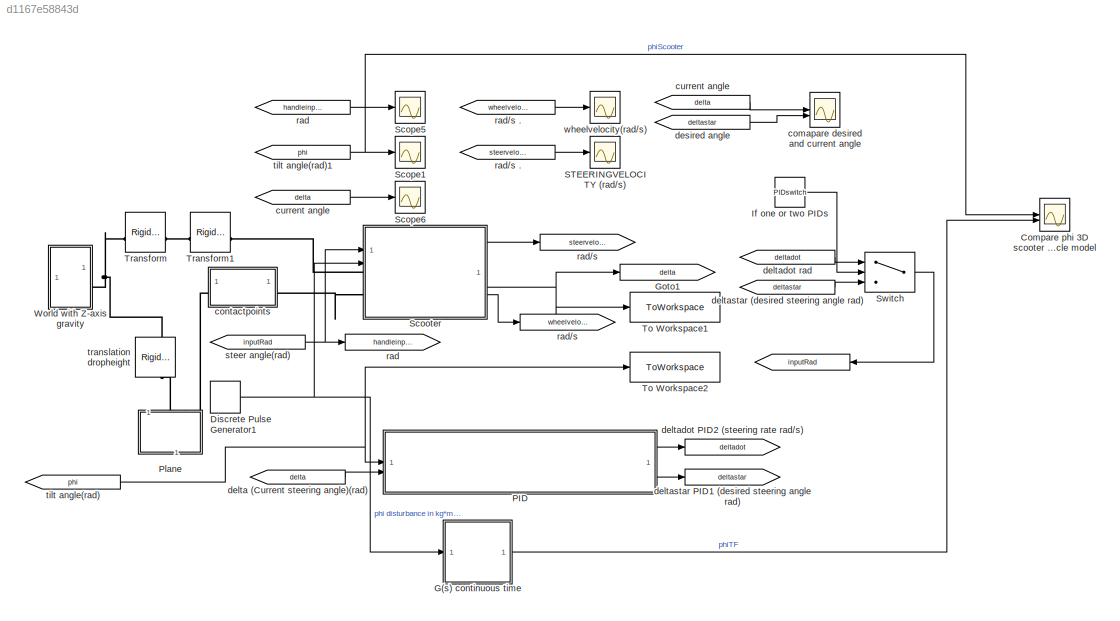
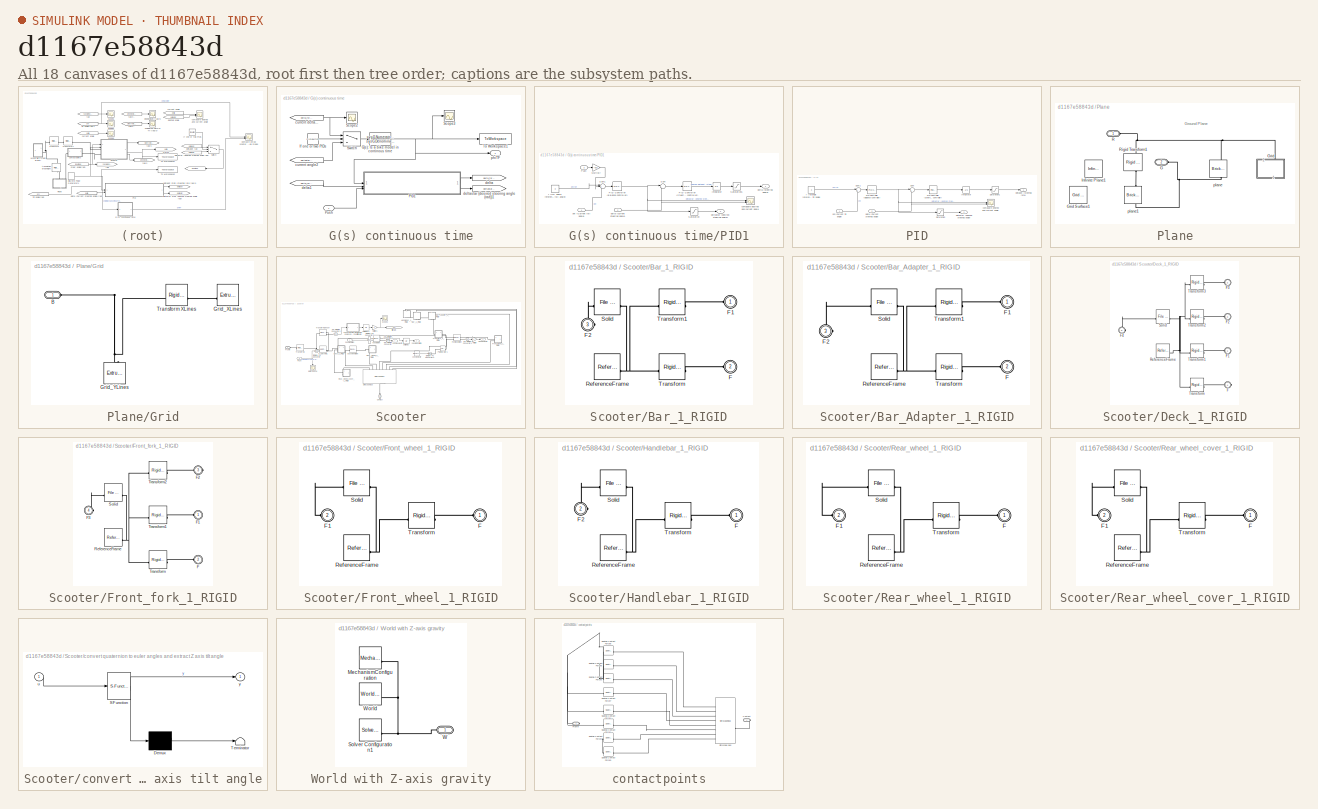
[diagram: thumbnail index - all 18 canvases of the model, root first then tree order]
MODEL slx_d1167e58843d
KIND model
CONFIG AbsTol = auto
CONFIG EnableMultiTasking = on
CONFIG FixedStep = 0.01
CONFIG MaxStep = auto
CONFIG MinStep = auto
CONFIG RelTol = 1e-3
CONFIG SampleTimeConstraint = Unconstrained
CONFIG SolverName = VariableStepAuto
CONFIG StartTime = 0.0
CONFIG StopTime = simulationtime
WORKSPACE source: external: MATLAB File  (data not in archive)
BLOCK [Goto]  
  GotoTag = inputRad
  TagVisibility = global
BLOCK [From]  deltadot rad
  GotoTag = deltadot
  NameLocation = top
  TagVisibility = global
BLOCK [From]  rad
  GotoTag = handleinput
  TagVisibility = global
BLOCK [Scope] Compare phi 3D scooter model vs TF of bicycle model
  Floating = off
  NumInputPorts = 2
  ScopeSpecificationString = Simulink.scopes.TimeScopeBlockCfg('CurrentConfiguration', extmgr.ConfigurationSet(extmgr.Configuration('Core','General UI',true),extmgr.Configuration('Core','Source UI',true),extmgr.Configuration('Sources','WiredSimulink',true,'DataLoggingVariableName','ScopeData1'),extmgr.Configuration('Visuals','Time Domain',true,'SerializedDisplays',{struct('MinYLimReal','-0.11415','MaxYLimReal','0.06464','YLab...<+1575ch>
BLOCK [DiscretePulseGenerator] Discrete Pulse Generator1
  Amplitude = pushamp
  Period = 100
  PhaseDelay = phase
  PulseType = Time based
  PulseWidth = 0.1
BLOCK [SubSystem] G(s) continuous time
BLOCK [TransferFcn] G(s) continuous time/G(s): Is a bike model in continous time
  Denominator = sysG.Denominator{:}
  Numerator = sysG.Numerator{:}
BLOCK [Constant] G(s) continuous time/If one or two PIDs
  Value = PIDswitch
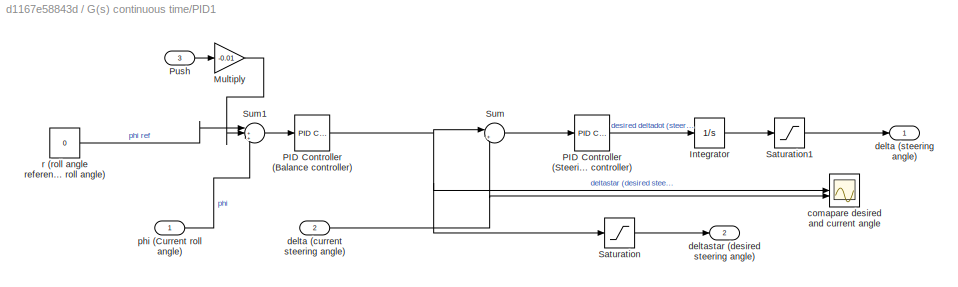
BLOCK [SubSystem] G(s) continuous time/PID1
BLOCK [Integrator] G(s) continuous time/PID1/Integrator
BLOCK [Gain] G(s) continuous time/PID1/Multiply
  Gain = -0.01
BLOCK [Reference] G(s) continuous time/PID1/PID Controller (Balance controller)  REF=slpidlib/PID Controller
  SourceBlock = slpidlib/PID Controller
  SourceType = PID 1dof
BLOCK [Reference] G(s) continuous time/PID1/PID Controller (Steering position controller)  REF=slpidlib/PID Controller
  SourceBlock = slpidlib/PID Controller
  SourceType = PID 1dof
BLOCK [Inport] G(s) continuous time/PID1/Push
  Port = 3
BLOCK [Saturate] G(s) continuous time/PID1/Saturation
  LowerLimit = -1
  UpperLimit = 1
BLOCK [Saturate] G(s) continuous time/PID1/Saturation1
  LowerLimit = -1
  UpperLimit = 1
  ZeroCross = off
BLOCK [Sum] G(s) continuous time/PID1/Sum
  Inputs = |+-
BLOCK [Sum] G(s) continuous time/PID1/Sum1
  Inputs = |++-
BLOCK [Scope] G(s) continuous time/PID1/comapare desired and current angle
  Floating = off
  NumInputPorts = 2
  ScopeSpecificationString = Simulink.scopes.TimeScopeBlockCfg('CurrentConfiguration', extmgr.ConfigurationSet(extmgr.Configuration('Core','General UI',true),extmgr.Configuration('Core','Source UI',true),extmgr.Configuration('Sources','WiredSimulink',true,'DataLoggingVariableName','ScopeData1'),extmgr.Configuration('Visuals','Time Domain',true,'SerializedDisplays',{struct('MinYLimReal','-0.07103','MaxYLimReal','0.01872','YLab...<+1497ch>
BLOCK [Inport] G(s) continuous time/PID1/delta (current steering angle)
  Port = 2
BLOCK [Outport] G(s) continuous time/PID1/delta (steering angle)
BLOCK [Outport] G(s) continuous time/PID1/deltastar (desired steering angle)
  Port = 2
BLOCK [Inport] G(s) continuous time/PID1/phi (Current roll angle)
BLOCK [Constant] G(s) continuous time/PID1/r (roll angle reference signal, i.e. desired roll angle)
  Value = 0
BLOCK [Inport] G(s) continuous time/Push
BLOCK [Scope] G(s) continuous time/Scope2
  Floating = off
  NumInputPorts = 1
  ScopeSpecificationString = Simulink.scopes.TimeScopeBlockCfg('CurrentConfiguration', extmgr.ConfigurationSet(extmgr.Configuration('Core','General UI',true),extmgr.Configuration('Core','Source UI',true),extmgr.Configuration('Sources','WiredSimulink',true,'DataLoggingVariableName','ScopeData3'),extmgr.Configuration('Visuals','Time Domain',true,'SerializedDisplays',{struct('MinYLimReal','-0.18462','MaxYLimReal','0.31311','YLab...<+1419ch>
BLOCK [Scope] G(s) continuous time/Scope3
  Floating = off
  NumInputPorts = 1
  ScopeSpecificationString = Simulink.scopes.TimeScopeBlockCfg('CurrentConfiguration', extmgr.ConfigurationSet(extmgr.Configuration('Core','General UI',true),extmgr.Configuration('Core','Source UI',true),extmgr.Configuration('Sources','WiredSimulink',true,'DataLoggingVariableName','ScopeData4'),extmgr.Configuration('Visuals','Time Domain',true,'SerializedDisplays',{struct('MinYLimReal','-0.05588','MaxYLimReal','0.12284','YLab...<+1427ch>
BLOCK [Switch] G(s) continuous time/Switch
  Criteria = u2 > Threshold
  InputSameDT = off
  SaturateOnIntegerOverflow = off
BLOCK [ToWorkspace] G(s) continuous time/To Workspace1
  MaxDataPoints = inf
  SampleTime = Ts
  Save2DSignal = 2-D array (concatenate along first dimension)
  VariableName = roll_angle_CAD1
BLOCK [From] G(s) continuous time/current angle2
  GotoTag = deltastarGC
  TagVisibility = global
BLOCK [From] G(s) continuous time/current delta...
  GotoTag = delta_fsrGC
  TagVisibility = global
BLOCK [Goto] G(s) continuous time/delta
  GotoTag = delta_fsrGC
  NameLocation = top
  TagVisibility = global
BLOCK [From] G(s) continuous time/delta1
  GotoTag = delta_fsrGC
  TagVisibility = global
BLOCK [Goto] G(s) continuous time/deltastar (desired steering angle (rad))1
  GotoTag = deltastarGC
  TagVisibility = global
BLOCK [Outport] G(s) continuous time/phiTF
BLOCK [Goto] Goto1
  GotoTag = delta
  TagVisibility = global
BLOCK [Constant] If one or two PIDs
  Value = PIDswitch
BLOCK [SubSystem] PID
BLOCK [Integrator] PID/Integrator
BLOCK [Reference] PID/PID Controller (Balance controller)  REF=slpidlib/PID Controller
  SourceBlock = slpidlib/PID Controller
  SourceType = PID 1dof
BLOCK [Reference] PID/PID Controller (Steering position controller)  REF=slpidlib/PID Controller
  SourceBlock = slpidlib/PID Controller
  SourceType = PID 1dof
BLOCK [Saturate] PID/Saturation
  LowerLimit = -1
  UpperLimit = 1
BLOCK [Saturate] PID/Saturation1
  LowerLimit = -1
  UpperLimit = 1
  ZeroCross = off
BLOCK [Sum] PID/Sum
  Inputs = |+-
BLOCK [Sum] PID/Sum1
  Inputs = |+-
BLOCK [Scope] PID/comapare desired and current angle
  Floating = off
  NumInputPorts = 2
  ScopeSpecificationString = Simulink.scopes.TimeScopeBlockCfg('CurrentConfiguration', extmgr.ConfigurationSet(extmgr.Configuration('Core','General UI',true),extmgr.Configuration('Core','Source UI',true),extmgr.Configuration('Sources','WiredSimulink',true,'DataLoggingVariableName','ScopeData1'),extmgr.Configuration('Visuals','Time Domain',true,'SerializedDisplays',{struct('MinYLimReal','-0.90605','MaxYLimReal','8.15446','YLab...<+1497ch>
BLOCK [Inport] PID/delta (Current steering angle)
  Port = 2
BLOCK [Outport] PID/deltadot (steering rate)
BLOCK [Outport] PID/deltastar (desired steering angle)
  Port = 2
BLOCK [Inport] PID/phi (Current tilt angle)
BLOCK [Constant] PID/r (roll angle reference signal, i.e. desired tilt angle)
  Value = 0
BLOCK [SubSystem] Plane
  NameLocation = left
BLOCK [PMIOPort] Plane/G
  Port = 2
  Side = Left
BLOCK [SubSystem] Plane/Grid
  Commented = on
  NameLocation = right
BLOCK [Reference] Plane/Grid Surface1  REF=sm_lib/Curves and Surfaces/Grid Surface
  Commented = on
  NameLocation = left
  SourceBlock = sm_lib/Curves and Surfaces/Grid Surface
  SourceType = Grid Surface
BLOCK [PMIOPort] Plane/Grid/B
  Side = Left
BLOCK [Reference] Plane/Grid/Grid_XLines  REF=sm_lib/Body Elements/Extruded Solid
  SourceBlock = sm_lib/Body Elements/Extruded Solid
  SourceType = Extruded Solid
BLOCK [Reference] Plane/Grid/Grid_YLines  REF=sm_lib/Body Elements/Extruded Solid
  NameLocation = right
  SourceBlock = sm_lib/Body Elements/Extruded Solid
  SourceType = Extruded Solid
BLOCK [Reference] Plane/Grid/Transform XLines   REF=sm_lib/Frames and
Transforms/Rigid
Transform
  SourceBlock = sm_lib/Frames and\nTransforms/Rigid\nTransform
  SourceType = Rigid\nTransform
BLOCK [Reference] Plane/Infinite Plane1  REF=sm_lib/Curves and Surfaces/Infinite Plane
  Commented = on
  NameLocation = left
  SourceBlock = sm_lib/Curves and Surfaces/Infinite Plane
  SourceType = Infinite Plane
BLOCK [PMIOPort] Plane/R
  Side = Left
BLOCK [Reference] Plane/Rigid Transform1  REF=sm_lib/Frames and
Transforms/Rigid
Transform
  NameLocation = left
  SourceBlock = sm_lib/Frames and\nTransforms/Rigid\nTransform
  SourceType = Rigid\nTransform
BLOCK [Reference] Plane/plane  REF=sm_lib/Body Elements/Brick Solid
  Commented = on
  NameLocation = right
  SourceBlock = sm_lib/Body Elements/Brick Solid
  SourceType = Brick Solid
BLOCK [Reference] Plane/plane1  REF=sm_lib/Body Elements/Brick Solid
  NameLocation = right
  SourceBlock = sm_lib/Body Elements/Brick Solid
  SourceType = Brick Solid
BLOCK [Scope] STEERINGVELOCITY (rad//s) 
  Floating = off
  NumInputPorts = 1
  ScopeSpecificationString = Simulink.scopes.TimeScopeBlockCfg('CurrentConfiguration', extmgr.ConfigurationSet(extmgr.Configuration('Core','General UI',true),extmgr.Configuration('Core','Source UI',true),extmgr.Configuration('Sources','WiredSimulink',true,'DataLoggingVariableName','ScopeData1'),extmgr.Configuration('Visuals','Time Domain',true,'SerializedDisplays',{struct('MinYLimReal','-2.59554','MaxYLimReal','0.86601','YLab...<+1444ch>
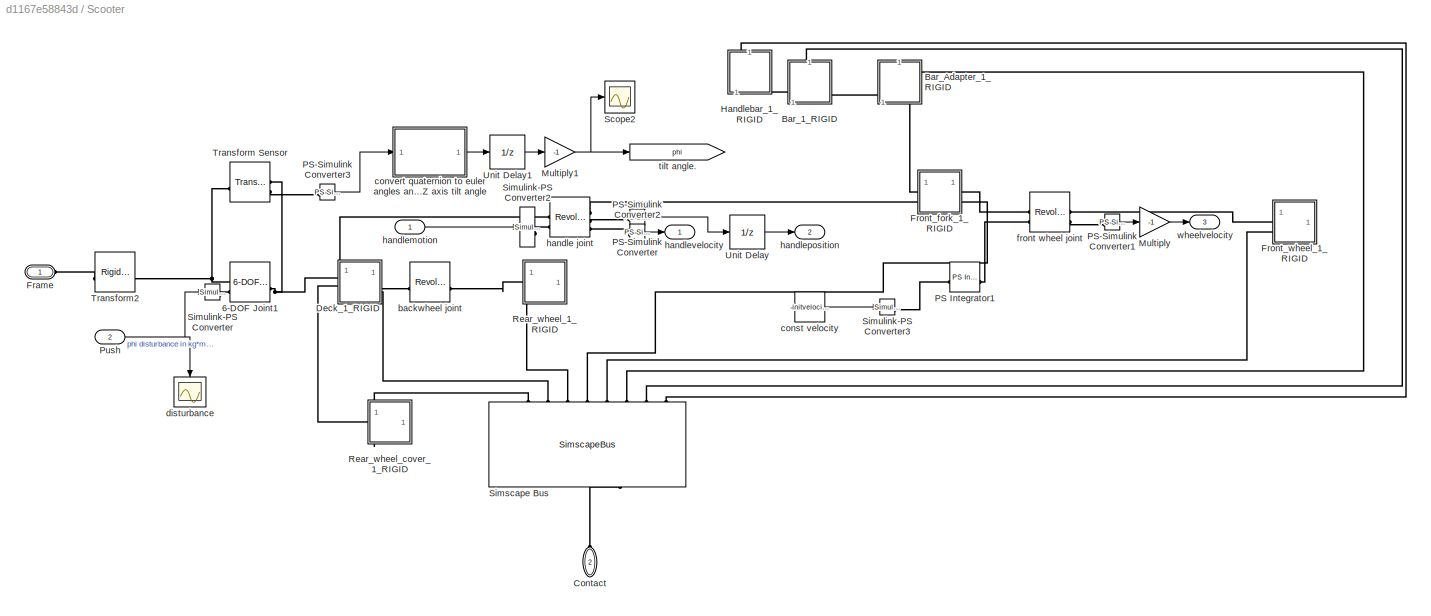
BLOCK [SubSystem] Scooter
  PortSchema = {"entries":[{"content":{"sides":[{"content":{"connectorIds":["LConn1","LConn2","In1","In2"]},"type":"ConnectorPlacement.EquallySpacedRectSide","uuid":"821be37d-f118-4276-8f40-2e74246f41db"},{"content":{"connectorIds":["Out1","Out2","Out3"],"side":"RIGHT"},"type":"ConnectorPlacement.EquallySpacedRectSide","uuid":"4823c5e1-23ac-4d84-a5ad-c8aa203f598c"},{"content":{"connectorIds":[],"side":"TOP"},"ty...<+278ch>
BLOCK [Reference] Scooter/6-DOF Joint1  REF=sm_lib/Joints/6-DOF Joint
  SourceBlock = sm_lib/Joints/6-DOF Joint
  SourceType = 6-DOF Joint
BLOCK [SubSystem] Scooter/Bar_1_RIGID
  NameLocation = right
BLOCK [PMIOPort] Scooter/Bar_1_RIGID/F
  Port = 2
  Side = Left
BLOCK [PMIOPort] Scooter/Bar_1_RIGID/F1
  Side = Left
BLOCK [PMIOPort] Scooter/Bar_1_RIGID/F2
  Port = 3
  Side = Right
BLOCK [Reference] Scooter/Bar_1_RIGID/ReferenceFrame  REF=sm_lib/Frames and
Transforms/Reference
Frame
  SourceBlock = sm_lib/Frames and\nTransforms/Reference\nFrame
  SourceType = Reference\nFrame
BLOCK [Reference] Scooter/Bar_1_RIGID/Solid  REF=sm_lib/Body Elements/File Solid
  SourceBlock = sm_lib/Body Elements/File Solid
  SourceType = File Solid
BLOCK [Reference] Scooter/Bar_1_RIGID/Transform  REF=sm_lib/Frames and
Transforms/Rigid
Transform
  SourceBlock = sm_lib/Frames and\nTransforms/Rigid\nTransform
  SourceType = Rigid\nTransform
BLOCK [Reference] Scooter/Bar_1_RIGID/Transform1  REF=sm_lib/Frames and
Transforms/Rigid
Transform
  SourceBlock = sm_lib/Frames and\nTransforms/Rigid\nTransform
  SourceType = Rigid\nTransform
BLOCK [SubSystem] Scooter/Bar_Adapter_1_RIGID
  NameLocation = right
BLOCK [PMIOPort] Scooter/Bar_Adapter_1_RIGID/F
  Port = 2
  Side = Left
BLOCK [PMIOPort] Scooter/Bar_Adapter_1_RIGID/F1
  Side = Left
BLOCK [PMIOPort] Scooter/Bar_Adapter_1_RIGID/F2
  Port = 3
  Side = Right
BLOCK [Reference] Scooter/Bar_Adapter_1_RIGID/ReferenceFrame  REF=sm_lib/Frames and
Transforms/Reference
Frame
  SourceBlock = sm_lib/Frames and\nTransforms/Reference\nFrame
  SourceType = Reference\nFrame
BLOCK [Reference] Scooter/Bar_Adapter_1_RIGID/Solid  REF=sm_lib/Body Elements/File Solid
  SourceBlock = sm_lib/Body Elements/File Solid
  SourceType = File Solid
BLOCK [Reference] Scooter/Bar_Adapter_1_RIGID/Transform  REF=sm_lib/Frames and
Transforms/Rigid
Transform
  SourceBlock = sm_lib/Frames and\nTransforms/Rigid\nTransform
  SourceType = Rigid\nTransform
BLOCK [Reference] Scooter/Bar_Adapter_1_RIGID/Transform1  REF=sm_lib/Frames and
Transforms/Rigid
Transform
  SourceBlock = sm_lib/Frames and\nTransforms/Rigid\nTransform
  SourceType = Rigid\nTransform
BLOCK [PMIOPort] Scooter/Contact
  NameLocation = left
  Port = 2
  Side = Left
BLOCK [SubSystem] Scooter/Deck_1_RIGID
  PortSchema = {"entries":[{"content":{"sides":[{"content":{"connectorIds":["LConn1","LConn2"]},"type":"ConnectorPlacement.EquallySpacedRectSide","uuid":"e640b087-a878-45a6-97e1-57f3f3f99897"},{"content":{"connectorIds":["RConn1"],"side":"RIGHT"},"type":"ConnectorPlacement.EquallySpacedRectSide","uuid":"9e71f2ba-54a3-42ef-8f24-facf79efbb21"},{"content":{"connectorIds":["LConn3"],"side":"TOP"},"type":"ConnectorPl...<+414ch>
BLOCK [PMIOPort] Scooter/Deck_1_RIGID/F
  Port = 4
  Side = Right
BLOCK [PMIOPort] Scooter/Deck_1_RIGID/F1
  Side = Left
BLOCK [PMIOPort] Scooter/Deck_1_RIGID/F2
  Port = 3
  Side = Left
BLOCK [PMIOPort] Scooter/Deck_1_RIGID/F3
  Port = 2
  Side = Left
BLOCK [PMIOPort] Scooter/Deck_1_RIGID/F4
  Port = 5
  Side = Right
BLOCK [Reference] Scooter/Deck_1_RIGID/ReferenceFrame  REF=sm_lib/Frames and
Transforms/Reference
Frame
  SourceBlock = sm_lib/Frames and\nTransforms/Reference\nFrame
  SourceType = Reference\nFrame
BLOCK [Reference] Scooter/Deck_1_RIGID/Solid  REF=sm_lib/Body Elements/File Solid
  SourceBlock = sm_lib/Body Elements/File Solid
  SourceType = File Solid
BLOCK [Reference] Scooter/Deck_1_RIGID/Transform  REF=sm_lib/Frames and
Transforms/Rigid
Transform
  SourceBlock = sm_lib/Frames and\nTransforms/Rigid\nTransform
  SourceType = Rigid\nTransform
BLOCK [Reference] Scooter/Deck_1_RIGID/Transform1  REF=sm_lib/Frames and
Transforms/Rigid
Transform
  SourceBlock = sm_lib/Frames and\nTransforms/Rigid\nTransform
  SourceType = Rigid\nTransform
BLOCK [Reference] Scooter/Deck_1_RIGID/Transform2  REF=sm_lib/Frames and
Transforms/Rigid
Transform
  SourceBlock = sm_lib/Frames and\nTransforms/Rigid\nTransform
  SourceType = Rigid\nTransform
BLOCK [Reference] Scooter/Deck_1_RIGID/Transform3  REF=sm_lib/Frames and
Transforms/Rigid
Transform
  SourceBlock = sm_lib/Frames and\nTransforms/Rigid\nTransform
  SourceType = Rigid\nTransform
BLOCK [PMIOPort] Scooter/Frame
  Side = Left
BLOCK [SubSystem] Scooter/Front_fork_1_RIGID
BLOCK [PMIOPort] Scooter/Front_fork_1_RIGID/F
  Port = 2
  Side = Left
BLOCK [PMIOPort] Scooter/Front_fork_1_RIGID/F1
  Side = Left
BLOCK [PMIOPort] Scooter/Front_fork_1_RIGID/F2
  Port = 3
  Side = Right
BLOCK [PMIOPort] Scooter/Front_fork_1_RIGID/F3
  Port = 4
  Side = Right
BLOCK [Reference] Scooter/Front_fork_1_RIGID/ReferenceFrame  REF=sm_lib/Frames and
Transforms/Reference
Frame
  SourceBlock = sm_lib/Frames and\nTransforms/Reference\nFrame
  SourceType = Reference\nFrame
BLOCK [Reference] Scooter/Front_fork_1_RIGID/Solid  REF=sm_lib/Body Elements/File Solid
  SourceBlock = sm_lib/Body Elements/File Solid
  SourceType = File Solid
BLOCK [Reference] Scooter/Front_fork_1_RIGID/Transform  REF=sm_lib/Frames and
Transforms/Rigid
Transform
  SourceBlock = sm_lib/Frames and\nTransforms/Rigid\nTransform
  SourceType = Rigid\nTransform
BLOCK [Reference] Scooter/Front_fork_1_RIGID/Transform1  REF=sm_lib/Frames and
Transforms/Rigid
Transform
  SourceBlock = sm_lib/Frames and\nTransforms/Rigid\nTransform
  SourceType = Rigid\nTransform
BLOCK [Reference] Scooter/Front_fork_1_RIGID/Transform2  REF=sm_lib/Frames and
Transforms/Rigid
Transform
  SourceBlock = sm_lib/Frames and\nTransforms/Rigid\nTransform
  SourceType = Rigid\nTransform
BLOCK [SubSystem] Scooter/Front_wheel_1_RIGID
BLOCK [PMIOPort] Scooter/Front_wheel_1_RIGID/F
  Side = Left
BLOCK [PMIOPort] Scooter/Front_wheel_1_RIGID/F1
  Port = 2
  Side = Left
BLOCK [Reference] Scooter/Front_wheel_1_RIGID/ReferenceFrame  REF=sm_lib/Frames and
Transforms/Reference
Frame
  SourceBlock = sm_lib/Frames and\nTransforms/Reference\nFrame
  SourceType = Reference\nFrame
BLOCK [Reference] Scooter/Front_wheel_1_RIGID/Solid  REF=sm_lib/Body Elements/File Solid
  SourceBlock = sm_lib/Body Elements/File Solid
  SourceType = File Solid
BLOCK [Reference] Scooter/Front_wheel_1_RIGID/Transform  REF=sm_lib/Frames and
Transforms/Rigid
Transform
  SourceBlock = sm_lib/Frames and\nTransforms/Rigid\nTransform
  SourceType = Rigid\nTransform
BLOCK [SubSystem] Scooter/Handlebar_1_RIGID
BLOCK [PMIOPort] Scooter/Handlebar_1_RIGID/F
  Side = Left
BLOCK [PMIOPort] Scooter/Handlebar_1_RIGID/F2
  Port = 2
  Side = Right
BLOCK [Reference] Scooter/Handlebar_1_RIGID/ReferenceFrame  REF=sm_lib/Frames and
Transforms/Reference
Frame
  SourceBlock = sm_lib/Frames and\nTransforms/Reference\nFrame
  SourceType = Reference\nFrame
BLOCK [Reference] Scooter/Handlebar_1_RIGID/Solid  REF=sm_lib/Body Elements/File Solid
  SourceBlock = sm_lib/Body Elements/File Solid
  SourceType = File Solid
BLOCK [Reference] Scooter/Handlebar_1_RIGID/Transform  REF=sm_lib/Frames and
Transforms/Rigid
Transform
  SourceBlock = sm_lib/Frames and\nTransforms/Rigid\nTransform
  SourceType = Rigid\nTransform
BLOCK [Gain] Scooter/Multiply
  Gain = -1
BLOCK [Gain] Scooter/Multiply1
  Gain = -1
BLOCK [Reference] Scooter/PS Integrator1  REF=fl_lib/Physical Signals/Linear Operators/PS Integrator
  SourceBlock = fl_lib/Physical Signals/Linear Operators/PS Integrator
  SourceType = PS Integrator
BLOCK [Reference] Scooter/PS-Simulink Converter  REF=nesl_utility/PS-Simulink
Converter
  SourceBlock = nesl_utility/PS-Simulink\nConverter
  SourceType = PS-Simulink\nConverter
BLOCK [Reference] Scooter/PS-Simulink Converter1  REF=nesl_utility/PS-Simulink
Converter
  SourceBlock = nesl_utility/PS-Simulink\nConverter
  SourceType = PS-Simulink\nConverter
BLOCK [Reference] Scooter/PS-Simulink Converter2  REF=nesl_utility/PS-Simulink
Converter
  SourceBlock = nesl_utility/PS-Simulink\nConverter
  SourceType = PS-Simulink\nConverter
BLOCK [Reference] Scooter/PS-Simulink Converter3  REF=nesl_utility/PS-Simulink
Converter
  SourceBlock = nesl_utility/PS-Simulink\nConverter
  SourceType = PS-Simulink\nConverter
BLOCK [Inport] Scooter/Push
  Port = 2
BLOCK [SubSystem] Scooter/Rear_wheel_1_RIGID
BLOCK [PMIOPort] Scooter/Rear_wheel_1_RIGID/F
  Side = Left
BLOCK [PMIOPort] Scooter/Rear_wheel_1_RIGID/F1
  Port = 2
  Side = Left
BLOCK [Reference] Scooter/Rear_wheel_1_RIGID/ReferenceFrame  REF=sm_lib/Frames and
Transforms/Reference
Frame
  SourceBlock = sm_lib/Frames and\nTransforms/Reference\nFrame
  SourceType = Reference\nFrame
BLOCK [Reference] Scooter/Rear_wheel_1_RIGID/Solid  REF=sm_lib/Body Elements/File Solid
  SourceBlock = sm_lib/Body Elements/File Solid
  SourceType = File Solid
BLOCK [Reference] Scooter/Rear_wheel_1_RIGID/Transform  REF=sm_lib/Frames and
Transforms/Rigid
Transform
  SourceBlock = sm_lib/Frames and\nTransforms/Rigid\nTransform
  SourceType = Rigid\nTransform
BLOCK [SubSystem] Scooter/Rear_wheel_cover_1_RIGID
BLOCK [PMIOPort] Scooter/Rear_wheel_cover_1_RIGID/F
  Side = Left
BLOCK [PMIOPort] Scooter/Rear_wheel_cover_1_RIGID/F1
  Port = 2
  Side = Left
BLOCK [Reference] Scooter/Rear_wheel_cover_1_RIGID/ReferenceFrame  REF=sm_lib/Frames and
Transforms/Reference
Frame
  SourceBlock = sm_lib/Frames and\nTransforms/Reference\nFrame
  SourceType = Reference\nFrame
BLOCK [Reference] Scooter/Rear_wheel_cover_1_RIGID/Solid  REF=sm_lib/Body Elements/File Solid
  SourceBlock = sm_lib/Body Elements/File Solid
  SourceType = File Solid
BLOCK [Reference] Scooter/Rear_wheel_cover_1_RIGID/Transform  REF=sm_lib/Frames and
Transforms/Rigid
Transform
  SourceBlock = sm_lib/Frames and\nTransforms/Rigid\nTransform
  SourceType = Rigid\nTransform
BLOCK [Scope] Scooter/Scope2
  Floating = off
  NumInputPorts = 1
  ScopeSpecificationString = Simulink.scopes.TimeScopeBlockCfg('CurrentConfiguration', extmgr.ConfigurationSet(extmgr.Configuration('Core','General UI',true),extmgr.Configuration('Core','Source UI',true),extmgr.Configuration('Sources','WiredSimulink',true,'DataLoggingVariableName','ScopeData1'),extmgr.Configuration('Visuals','Time Domain',true,'SerializedDisplays',{struct('MinYLimReal','-0.02151','MaxYLimReal','0.00383','YLab...<+1368ch>
BLOCK [SimscapeBus] Scooter/Simscape Bus
  HierarchyStrings = RearWheelCover;Deck;BackWheel;FrontFork;FrontWheel;BarAdapter;Bar;HandleBar
  NameLocation = left
BLOCK [Reference] Scooter/Simulink-PS Converter  REF=nesl_utility/Simulink-PS
Converter
  SourceBlock = nesl_utility/Simulink-PS\nConverter
  SourceType = Simulink-PS\nConverter
BLOCK [Reference] Scooter/Simulink-PS Converter2  REF=nesl_utility/Simulink-PS
Converter
  SourceBlock = nesl_utility/Simulink-PS\nConverter
  SourceType = Simulink-PS\nConverter
BLOCK [Reference] Scooter/Simulink-PS Converter3  REF=nesl_utility/Simulink-PS
Converter
  SourceBlock = nesl_utility/Simulink-PS\nConverter
  SourceType = Simulink-PS\nConverter
BLOCK [Reference] Scooter/Transform Sensor  REF=sm_lib/Frames and
Transforms/Transform
Sensor
  SourceBlock = sm_lib/Frames and\nTransforms/Transform\nSensor
  SourceType = Transform\nSensor
BLOCK [Reference] Scooter/Transform2  REF=sm_lib/Frames and
Transforms/Rigid
Transform
  SourceBlock = sm_lib/Frames and\nTransforms/Rigid\nTransform
  SourceType = Rigid\nTransform
BLOCK [UnitDelay] Scooter/Unit Delay
  HasFrameUpgradeWarning = on
  SampleTime = Ts
BLOCK [UnitDelay] Scooter/Unit Delay1
  HasFrameUpgradeWarning = on
  SampleTime = Ts
BLOCK [Reference] Scooter/backwheel joint  REF=sm_lib/Joints/Revolute Joint
  SourceBlock = sm_lib/Joints/Revolute Joint
  SourceType = Revolute Joint
BLOCK [Constant] Scooter/const velocity
  Value = -initvelocity
BLOCK [SubSystem] Scooter/convert quaternion to euler angles and extract Z axis tilt angle
  ErrorFcn = Stateflow.Translate.translate
  LibrarySourceBlock = simulink/User-Defined\nFunctions/MATLAB Function
  NameLocation = top
  PermitHierarchicalResolution = ExplicitOnly
  SFBlockType = MATLAB Function
  TreatAsAtomicUnit = on
BLOCK [Demux] Scooter/convert quaternion to euler angles and extract Z axis tilt angle/ Demux 
  Outputs = 1
BLOCK [S-Function] Scooter/convert quaternion to euler angles and extract Z axis tilt angle/ SFunction 
  EnableBusSupport = on
  FunctionName = sf_sfun
  PortCounts = [1 2]
  SFcnIsStateOwnerBlock = off
  SFunctionDeploymentMode = off
  Tag = Stateflow S-Function 2
BLOCK [Terminator] Scooter/convert quaternion to euler angles and extract Z axis tilt angle/ Terminator 
BLOCK [Inport] Scooter/convert quaternion to euler angles and extract Z axis tilt angle/u
BLOCK [Outport] Scooter/convert quaternion to euler angles and extract Z axis tilt angle/y
BLOCK [Scope] Scooter/disturbance
  Floating = off
  NameLocation = left
  NumInputPorts = 1
  ScopeSpecificationString = Simulink.scopes.TimeScopeBlockCfg('CurrentConfiguration', extmgr.ConfigurationSet(extmgr.Configuration('Core','General UI',true),extmgr.Configuration('Core','Source UI',true),extmgr.Configuration('Sources','WiredSimulink',true,'DataLoggingVariableName','ScopeData2'),extmgr.Configuration('Visuals','Time Domain',true,'SerializedDisplays',{struct('MinYLimReal','-0.625','MaxYLimReal','5.625','YLabelRe...<+1406ch>
BLOCK [Reference] Scooter/front wheel joint  REF=sm_lib/Joints/Revolute Joint
  SourceBlock = sm_lib/Joints/Revolute Joint
  SourceType = Revolute Joint
BLOCK [Reference] Scooter/handle joint  REF=sm_lib/Joints/Revolute Joint
  SourceBlock = sm_lib/Joints/Revolute Joint
  SourceType = Revolute Joint
BLOCK [Inport] Scooter/handlemotion
BLOCK [Outport] Scooter/handleposition
  Port = 2
BLOCK [Outport] Scooter/handlevelocity
BLOCK [Goto] Scooter/tilt angle.
  GotoTag = phi
  TagVisibility = global
BLOCK [Outport] Scooter/wheelvelocity
  Port = 3
BLOCK [Scope] Scope1
  Floating = off
  NumInputPorts = 1
  ScopeSpecificationString = Simulink.scopes.TimeScopeBlockCfg('CurrentConfiguration', extmgr.ConfigurationSet(extmgr.Configuration('Core','General UI',true),extmgr.Configuration('Core','Source UI',true),extmgr.Configuration('Sources','WiredSimulink',true,'DataLoggingVariableName','ScopeData2'),extmgr.Configuration('Visuals','Time Domain',true,'SerializedDisplays',{struct('MinYLimReal','-0.02151','MaxYLimReal','0.00383','YLab...<+1458ch>
BLOCK [Scope] Scope5
  Floating = off
  NumInputPorts = 1
  ScopeSpecificationString = Simulink.scopes.TimeScopeBlockCfg('CurrentConfiguration', extmgr.ConfigurationSet(extmgr.Configuration('Core','General UI',true),extmgr.Configuration('Core','Source UI',true),extmgr.Configuration('Sources','WiredSimulink',true,'DataLoggingVariableName','ScopeData6'),extmgr.Configuration('Visuals','Time Domain',true,'SerializedDisplays',{struct('MinYLimReal','-0.06868','MaxYLimReal','0.01039','YLab...<+1473ch>
BLOCK [Scope] Scope6
  Floating = off
  NumInputPorts = 1
  ScopeSpecificationString = Simulink.scopes.TimeScopeBlockCfg('CurrentConfiguration', extmgr.ConfigurationSet(extmgr.Configuration('Core','General UI',true),extmgr.Configuration('Core','Source UI',true),extmgr.Configuration('Sources','WiredSimulink',true,'DataLoggingVariableName','ScopeData7'),extmgr.Configuration('Visuals','Time Domain',true,'SerializedDisplays',{struct('MinYLimReal','-0.01559','MaxYLimReal','0.0874','YLabe...<+1455ch>
BLOCK [Switch] Switch
  Criteria = u2 > Threshold
  InputSameDT = off
  SaturateOnIntegerOverflow = off
BLOCK [ToWorkspace] To Workspace1
  FixptAsFi = on
  MaxDataPoints = inf
  SampleTime = Ts
  Save2DSignal = 2-D array (concatenate along first dimension)
  VariableName = steer_angle_CAD
BLOCK [ToWorkspace] To Workspace2
  FixptAsFi = on
  MaxDataPoints = inf
  SampleTime = Ts
  Save2DSignal = 2-D array (concatenate along first dimension)
  VariableName = roll_angle_CAD
BLOCK [Reference] Transform  REF=sm_lib/Frames and
Transforms/Rigid
Transform
  SourceBlock = sm_lib/Frames and\nTransforms/Rigid\nTransform
  SourceType = Rigid\nTransform
BLOCK [Reference] Transform1  REF=sm_lib/Frames and
Transforms/Rigid
Transform
  SourceBlock = sm_lib/Frames and\nTransforms/Rigid\nTransform
  SourceType = Rigid\nTransform
BLOCK [SubSystem] World with Z-axis gravity
BLOCK [Reference] World with Z-axis gravity/MechanismConfiguration  REF=sm_lib/Utilities/Mechanism
Configuration
  SourceBlock = sm_lib/Utilities/Mechanism\nConfiguration
  SourceType = Mechanism\nConfiguration
BLOCK [Reference] World with Z-axis gravity/Solver Configuration1  REF=nesl_utility/Solver
Configuration
  SourceBlock = nesl_utility/Solver\nConfiguration
  SourceType = Solver\nConfiguration
BLOCK [PMIOPort] World with Z-axis gravity/W
  Side = Right
BLOCK [Reference] World with Z-axis gravity/World  REF=sm_lib/Frames and
Transforms/World Frame
  SourceBlock = sm_lib/Frames and\nTransforms/World Frame
  SourceType = World Frame
BLOCK [Scope] comapare desired and current angle
  Floating = off
  NumInputPorts = 2
  ScopeSpecificationString = Simulink.scopes.TimeScopeBlockCfg('CurrentConfiguration', extmgr.ConfigurationSet(extmgr.Configuration('Core','General UI',true),extmgr.Configuration('Core','Source UI',true),extmgr.Configuration('Sources','WiredSimulink',true,'DataLoggingVariableName','ScopeData8'),extmgr.Configuration('Visuals','Time Domain',true,'SerializedDisplays',{struct('MinYLimReal','-0.01745','MaxYLimReal','0.08747','YLab...<+1520ch>
BLOCK [SubSystem] contactpoints
BLOCK [PMIOPort] contactpoints/Contact
  Side = Right
BLOCK [PMIOPort] contactpoints/Frame
  Port = 2
  Side = Left
BLOCK [SimscapeBus] contactpoints/Simscape Bus
  HierarchyStrings = RearWheelCover;Deck;BackWheel;FrontFork;FrontWheel;BarAdapter;Bar;HandleBar
BLOCK [Reference] contactpoints/Spatial Contact Force1  REF=sm_lib/Forces and
Torques/Spatial
Contact Force
  SourceBlock = sm_lib/Forces and\nTorques/Spatial\nContact Force
  SourceType = Spatial\nContact Force
BLOCK [Reference] contactpoints/Spatial Contact Force2  REF=sm_lib/Forces and
Torques/Spatial
Contact Force
  SourceBlock = sm_lib/Forces and\nTorques/Spatial\nContact Force
  SourceType = Spatial\nContact Force
BLOCK [Reference] contactpoints/Spatial Contact Force3  REF=sm_lib/Forces and
Torques/Spatial
Contact Force
  SourceBlock = sm_lib/Forces and\nTorques/Spatial\nContact Force
  SourceType = Spatial\nContact Force
BLOCK [Reference] contactpoints/Spatial Contact Force4  REF=sm_lib/Forces and
Torques/Spatial
Contact Force
  SourceBlock = sm_lib/Forces and\nTorques/Spatial\nContact Force
  SourceType = Spatial\nContact Force
BLOCK [Reference] contactpoints/Spatial Contact Force5  REF=sm_lib/Forces and
Torques/Spatial
Contact Force
  SourceBlock = sm_lib/Forces and\nTorques/Spatial\nContact Force
  SourceType = Spatial\nContact Force
BLOCK [Reference] contactpoints/Spatial Contact Force6  REF=sm_lib/Forces and
Torques/Spatial
Contact Force
  SourceBlock = sm_lib/Forces and\nTorques/Spatial\nContact Force
  SourceType = Spatial\nContact Force
BLOCK [Reference] contactpoints/Spatial Contact Force7  REF=sm_lib/Forces and
Torques/Spatial
Contact Force
  SourceBlock = sm_lib/Forces and\nTorques/Spatial\nContact Force
  SourceType = Spatial\nContact Force
BLOCK [Reference] contactpoints/Spatial Contact Force8  REF=sm_lib/Forces and
Torques/Spatial
Contact Force
  SourceBlock = sm_lib/Forces and\nTorques/Spatial\nContact Force
  SourceType = Spatial\nContact Force
BLOCK [From] current angle
  GotoTag = delta
  TagVisibility = global
BLOCK [From] current angle 
  GotoTag = delta
  NameLocation = top
  TagVisibility = global
BLOCK [From] delta (Current steering angle)(rad)
  GotoTag = delta
  TagVisibility = global
BLOCK [Goto] deltadot PID2 (steering rate rad//s)
  GotoTag = deltadot
  NameLocation = top
  TagVisibility = global
BLOCK [From] deltastar (desired steering angle rad) 
  GotoTag = deltastar
  TagVisibility = global
BLOCK [Goto] deltastar PID1 (desired steering angle rad)
  GotoTag = deltastar
  TagVisibility = global
BLOCK [From] desired angle
  GotoTag = deltastar
  TagVisibility = global
BLOCK [Goto] rad
  GotoTag = handleinput
  TagVisibility = global
BLOCK [Goto] rad//s
  GotoTag = wheelvelocity
  TagVisibility = global
BLOCK [Goto] rad//s 
  GotoTag = steervelocity
  TagVisibility = global
BLOCK [From] rad//s .
  GotoTag = wheelvelocity
  TagVisibility = global
BLOCK [From] rad//s . 
  GotoTag = steervelocity
  TagVisibility = global
BLOCK [From] steer angle(rad) 
  GotoTag = inputRad
  TagVisibility = global
BLOCK [From] tilt angle(rad)
  GotoTag = phi
  TagVisibility = global
BLOCK [From] tilt angle(rad)1
  GotoTag = phi
  TagVisibility = global
BLOCK [Reference] translation dropheight  REF=sm_lib/Frames and
Transforms/Rigid
Transform
  NameLocation = left
  SourceBlock = sm_lib/Frames and\nTransforms/Rigid\nTransform
  SourceType = Rigid\nTransform
BLOCK [Scope] wheelvelocity(rad//s)
  Floating = off
  NameLocation = top
  NumInputPorts = 1
  ScopeSpecificationString = Simulink.scopes.TimeScopeBlockCfg('CurrentConfiguration', extmgr.ConfigurationSet(extmgr.Configuration('Core','General UI',true),extmgr.Configuration('Core','Source UI',true),extmgr.Configuration('Sources','WiredSimulink',true,'DataLoggingVariableName','ScopeData9'),extmgr.Configuration('Visuals','Time Domain',true,'SerializedDisplays',{struct('MinYLimReal','-2.52525','MaxYLimReal','22.72727','YLa...<+1400ch>
ANNOTATION Plane: Ground Plane
LINE  deltadot rad:1 -> Switch:1
LINE  rad:1 -> Scope5:1
NET Discrete Pulse Generator1:1 -> G(s) continuous time:1, Scooter:2
NET G(s) continuous time/G(s): Is a bike model in continous time:1 -> G(s) continuous time/PID1:1, G(s) continuous time/Scope3:1, G(s) continuous time/To Workspace1:1, G(s) continuous time/phiTF:1
LINE G(s) continuous time/If one or two PIDs:1 -> G(s) continuous time/Switch:2
LINE G(s) continuous time/PID1/Integrator:1 -> G(s) continuous time/PID1/Saturation1:1
LINE G(s) continuous time/PID1/Multiply:1 -> G(s) continuous time/PID1/Sum1:2
NET G(s) continuous time/PID1/PID Controller (Balance controller):1 -> G(s) continuous time/PID1/Saturation:1, G(s) continuous time/PID1/Sum:1, G(s) continuous time/PID1/comapare desired and current angle:1
LINE G(s) continuous time/PID1/PID Controller (Steering position controller):1 -> G(s) continuous time/PID1/Integrator:1
LINE G(s) continuous time/PID1/Push:1 -> G(s) continuous time/PID1/Multiply:1
LINE G(s) continuous time/PID1/Saturation1:1 -> G(s) continuous time/PID1/delta (steering angle):1
LINE G(s) continuous time/PID1/Saturation:1 -> G(s) continuous time/PID1/deltastar (desired steering angle):1
LINE G(s) continuous time/PID1/Sum1:1 -> G(s) continuous time/PID1/PID Controller (Balance controller):1
LINE G(s) continuous time/PID1/Sum:1 -> G(s) continuous time/PID1/PID Controller (Steering position controller):1
NET G(s) continuous time/PID1/delta (current steering angle):1 -> G(s) continuous time/PID1/Sum:2, G(s) continuous time/PID1/comapare desired and current angle:2
LINE G(s) continuous time/PID1/phi (Current roll angle):1 -> G(s) continuous time/PID1/Sum1:3
LINE G(s) continuous time/PID1/r (roll angle reference signal, i.e. desired roll angle):1 -> G(s) continuous time/PID1/Sum1:1
LINE G(s) continuous time/PID1:1 -> G(s) continuous time/delta:1
LINE G(s) continuous time/PID1:2 -> G(s) continuous time/deltastar (desired steering angle (rad))1:1
LINE G(s) continuous time/Push:1 -> G(s) continuous time/PID1:3
LINE G(s) continuous time/Switch:1 -> G(s) continuous time/G(s): Is a bike model in continous time:1
LINE G(s) continuous time/current angle2:1 -> G(s) continuous time/Switch:3
NET G(s) continuous time/current delta...:1 -> G(s) continuous time/Scope2:1, G(s) continuous time/Switch:1
LINE G(s) continuous time/delta1:1 -> G(s) continuous time/PID1:2
LINE G(s) continuous time:1 -> Compare phi 3D scooter model vs TF of bicycle model:2
LINE If one or two PIDs:1 -> Switch:2
LINE PID/Integrator:1 -> PID/Saturation1:1
NET PID/PID Controller (Balance controller):1 -> PID/Saturation:1, PID/Sum:1, PID/comapare desired and current angle:1
LINE PID/PID Controller (Steering position controller):1 -> PID/Integrator:1
LINE PID/Saturation1:1 -> PID/deltadot (steering rate):1
LINE PID/Saturation:1 -> PID/deltastar (desired steering angle):1
LINE PID/Sum1:1 -> PID/PID Controller (Balance controller):1
LINE PID/Sum:1 -> PID/PID Controller (Steering position controller):1
NET PID/delta (Current steering angle):1 -> PID/Sum:2, PID/comapare desired and current angle:2
LINE PID/phi (Current tilt angle):1 -> PID/Sum1:2
LINE PID/r (roll angle reference signal, i.e. desired tilt angle):1 -> PID/Sum1:1
LINE PID:1 -> deltadot PID2 (steering rate rad//s):1
LINE PID:2 -> deltastar PID1 (desired steering angle rad):1
NET Scooter/Multiply1:1 -> Scooter/Scope2:1, Scooter/tilt angle.:1
LINE Scooter/Multiply:1 -> Scooter/wheelvelocity:1
LINE Scooter/PS-Simulink Converter1:1 -> Scooter/Multiply:1
LINE Scooter/PS-Simulink Converter2:1 -> Scooter/handlevelocity:1
LINE Scooter/PS-Simulink Converter3:1 -> Scooter/convert quaternion to euler angles and extract Z axis tilt angle:1
LINE Scooter/PS-Simulink Converter:1 -> Scooter/Unit Delay:1
NET Scooter/Push:1 -> Scooter/Simulink-PS Converter:1, Scooter/disturbance:1
LINE Scooter/Unit Delay1:1 -> Scooter/Multiply1:1
LINE Scooter/Unit Delay:1 -> Scooter/handleposition:1
LINE Scooter/const velocity:1 -> Scooter/Simulink-PS Converter3:1
LINE Scooter/convert quaternion to euler angles and extract Z axis tilt angle:1 -> Scooter/Unit Delay1:1
LINE Scooter/handlemotion:1 -> Scooter/Simulink-PS Converter2:1
LINE Scooter:1 -> rad//s :1
NET Scooter:2 -> Goto1:1, To Workspace1:1
LINE Scooter:3 -> rad//s:1
LINE Switch:1 ->  :1
LINE current angle :1 -> comapare desired and current angle:1
LINE current angle:1 -> Scope6:1
LINE delta (Current steering angle)(rad):1 -> PID:2
LINE deltastar (desired steering angle rad) :1 -> Switch:3
LINE desired angle:1 -> comapare desired and current angle:2
LINE rad//s . :1 -> STEERINGVELOCITY (rad//s) :1
LINE rad//s .:1 -> wheelvelocity(rad//s):1
NET steer angle(rad) :1 -> Scooter:1, rad:1
NET tilt angle(rad)1:1 -> Compare phi 3D scooter model vs TF of bicycle model:1, Scope1:1
NET tilt angle(rad):1 -> PID:1, To Workspace2:1
PNET net1: Plane/G:RConn1 -- Plane/plane1:LConn1 -- Plane/plane:LConn1
PNET net2: Plane/Grid/B:RConn1 -- Plane/Grid/Grid_YLines:RConn1 -- Plane/Grid/Transform XLines :LConn1
PLINE Plane/Grid/Grid_XLines:RConn1 -- Plane/Grid/Transform XLines :RConn1
PNET net3: Plane/Grid:LConn1 -- Plane/R:RConn1 -- Plane/Rigid Transform1:LConn1 -- Plane/plane:RConn1
PLINE Plane/Rigid Transform1:RConn1 -- Plane/plane1:RConn1
PLINE Plane:LConn1 -- translation dropheight:RConn1
PLINE Plane:LConn2 -- contactpoints:LConn1
PNET net4: Scooter/6-DOF Joint1:LConn1 -- Scooter/Transform Sensor:LConn1 -- Scooter/Transform2:RConn1
PLINE Scooter/6-DOF Joint1:LConn2 -- Scooter/Simulink-PS Converter:RConn1
PNET net5: Scooter/6-DOF Joint1:RConn1 -- Scooter/Deck_1_RIGID:LConn1 -- Scooter/Transform Sensor:RConn1
PLINE Scooter/Bar_1_RIGID/F1:RConn1 -- Scooter/Bar_1_RIGID/Transform1:RConn1
PLINE Scooter/Bar_1_RIGID/F2:RConn1 -- Scooter/Bar_1_RIGID/Solid:LConn1
PLINE Scooter/Bar_1_RIGID/F:RConn1 -- Scooter/Bar_1_RIGID/Transform:RConn1
PNET net6: Scooter/Bar_1_RIGID/ReferenceFrame:RConn1 -- Scooter/Bar_1_RIGID/Solid:RConn1 -- Scooter/Bar_1_RIGID/Transform1:LConn1 -- Scooter/Bar_1_RIGID/Transform:LConn1
PLINE Scooter/Bar_1_RIGID:LConn1 -- Scooter/Handlebar_1_RIGID:LConn1
PLINE Scooter/Bar_1_RIGID:LConn2 -- Scooter/Bar_Adapter_1_RIGID:LConn1
PLINE Scooter/Bar_1_RIGID:RConn1 -- Scooter/Simscape Bus:LConn7
PLINE Scooter/Bar_Adapter_1_RIGID/F1:RConn1 -- Scooter/Bar_Adapter_1_RIGID/Transform1:RConn1
PLINE Scooter/Bar_Adapter_1_RIGID/F2:RConn1 -- Scooter/Bar_Adapter_1_RIGID/Solid:LConn1
PLINE Scooter/Bar_Adapter_1_RIGID/F:RConn1 -- Scooter/Bar_Adapter_1_RIGID/Transform:RConn1
PNET net7: Scooter/Bar_Adapter_1_RIGID/ReferenceFrame:RConn1 -- Scooter/Bar_Adapter_1_RIGID/Solid:RConn1 -- Scooter/Bar_Adapter_1_RIGID/Transform1:LConn1 -- Scooter/Bar_Adapter_1_RIGID/Transform:LConn1
PLINE Scooter/Bar_Adapter_1_RIGID:LConn2 -- Scooter/Front_fork_1_RIGID:LConn1
PLINE Scooter/Bar_Adapter_1_RIGID:RConn1 -- Scooter/Simscape Bus:LConn6
PLINE Scooter/Contact:RConn1 -- Scooter/Simscape Bus:RConn1
PLINE Scooter/Deck_1_RIGID/F1:RConn1 -- Scooter/Deck_1_RIGID/Transform1:RConn1
PLINE Scooter/Deck_1_RIGID/F2:RConn1 -- Scooter/Deck_1_RIGID/Transform2:RConn1
PLINE Scooter/Deck_1_RIGID/F3:RConn1 -- Scooter/Deck_1_RIGID/Transform3:RConn1
PLINE Scooter/Deck_1_RIGID/F4:RConn1 -- Scooter/Deck_1_RIGID/Solid:LConn1
PLINE Scooter/Deck_1_RIGID/F:RConn1 -- Scooter/Deck_1_RIGID/Transform:RConn1
PNET net8: Scooter/Deck_1_RIGID/ReferenceFrame:RConn1 -- Scooter/Deck_1_RIGID/Solid:RConn1 -- Scooter/Deck_1_RIGID/Transform1:LConn1 -- Scooter/Deck_1_RIGID/Transform2:LConn1 -- Scooter/Deck_1_RIGID/Transform3:LConn1 -- Scooter/Deck_1_RIGID/Transform:LConn1
PLINE Scooter/Deck_1_RIGID:LConn2 -- Scooter/Rear_wheel_cover_1_RIGID:LConn1
PLINE Scooter/Deck_1_RIGID:LConn3 -- Scooter/handle joint:LConn1
PLINE Scooter/Deck_1_RIGID:RConn1 -- Scooter/backwheel joint:LConn1
PLINE Scooter/Deck_1_RIGID:RConn2 -- Scooter/Simscape Bus:LConn2
PLINE Scooter/Frame:RConn1 -- Scooter/Transform2:LConn1
PLINE Scooter/Front_fork_1_RIGID/F1:RConn1 -- Scooter/Front_fork_1_RIGID/Transform1:RConn1
PLINE Scooter/Front_fork_1_RIGID/F2:RConn1 -- Scooter/Front_fork_1_RIGID/Transform2:RConn1
PLINE Scooter/Front_fork_1_RIGID/F3:RConn1 -- Scooter/Front_fork_1_RIGID/Solid:LConn1
PLINE Scooter/Front_fork_1_RIGID/F:RConn1 -- Scooter/Front_fork_1_RIGID/Transform:RConn1
PNET net9: Scooter/Front_fork_1_RIGID/ReferenceFrame:RConn1 -- Scooter/Front_fork_1_RIGID/Solid:RConn1 -- Scooter/Front_fork_1_RIGID/Transform1:LConn1 -- Scooter/Front_fork_1_RIGID/Transform2:LConn1 -- Scooter/Front_fork_1_RIGID/Transform:LConn1
PLINE Scooter/Front_fork_1_RIGID:LConn2 -- Scooter/handle joint:RConn1
PLINE Scooter/Front_fork_1_RIGID:RConn1 -- Scooter/front wheel joint:LConn1
PLINE Scooter/Front_fork_1_RIGID:RConn2 -- Scooter/Simscape Bus:LConn4
PLINE Scooter/Front_wheel_1_RIGID/F1:RConn1 -- Scooter/Front_wheel_1_RIGID/Solid:LConn1
PLINE Scooter/Front_wheel_1_RIGID/F:RConn1 -- Scooter/Front_wheel_1_RIGID/Transform:RConn1
PNET net10: Scooter/Front_wheel_1_RIGID/ReferenceFrame:RConn1 -- Scooter/Front_wheel_1_RIGID/Solid:RConn1 -- Scooter/Front_wheel_1_RIGID/Transform:LConn1
PLINE Scooter/Front_wheel_1_RIGID:LConn1 -- Scooter/front wheel joint:RConn1
PLINE Scooter/Front_wheel_1_RIGID:LConn2 -- Scooter/Simscape Bus:LConn5
PLINE Scooter/Handlebar_1_RIGID/F2:RConn1 -- Scooter/Handlebar_1_RIGID/Solid:LConn1
PLINE Scooter/Handlebar_1_RIGID/F:RConn1 -- Scooter/Handlebar_1_RIGID/Transform:RConn1
PNET net11: Scooter/Handlebar_1_RIGID/ReferenceFrame:RConn1 -- Scooter/Handlebar_1_RIGID/Solid:RConn1 -- Scooter/Handlebar_1_RIGID/Transform:LConn1
PLINE Scooter/Handlebar_1_RIGID:RConn1 -- Scooter/Simscape Bus:LConn8
PLINE Scooter/PS Integrator1:LConn1 -- Scooter/Simulink-PS Converter3:RConn1
PLINE Scooter/PS Integrator1:RConn1 -- Scooter/front wheel joint:LConn2
PLINE Scooter/PS-Simulink Converter1:LConn1 -- Scooter/front wheel joint:RConn2
PLINE Scooter/PS-Simulink Converter2:LConn1 -- Scooter/handle joint:RConn3
PLINE Scooter/PS-Simulink Converter3:LConn1 -- Scooter/Transform Sensor:RConn2
PLINE Scooter/PS-Simulink Converter:LConn1 -- Scooter/handle joint:RConn2
PLINE Scooter/Rear_wheel_1_RIGID/F1:RConn1 -- Scooter/Rear_wheel_1_RIGID/Solid:LConn1
PLINE Scooter/Rear_wheel_1_RIGID/F:RConn1 -- Scooter/Rear_wheel_1_RIGID/Transform:RConn1
PNET net12: Scooter/Rear_wheel_1_RIGID/ReferenceFrame:RConn1 -- Scooter/Rear_wheel_1_RIGID/Solid:RConn1 -- Scooter/Rear_wheel_1_RIGID/Transform:LConn1
PLINE Scooter/Rear_wheel_1_RIGID:LConn1 -- Scooter/backwheel joint:RConn1
PLINE Scooter/Rear_wheel_1_RIGID:LConn2 -- Scooter/Simscape Bus:LConn3
PLINE Scooter/Rear_wheel_cover_1_RIGID/F1:RConn1 -- Scooter/Rear_wheel_cover_1_RIGID/Solid:LConn1
PLINE Scooter/Rear_wheel_cover_1_RIGID/F:RConn1 -- Scooter/Rear_wheel_cover_1_RIGID/Transform:RConn1
PNET net13: Scooter/Rear_wheel_cover_1_RIGID/ReferenceFrame:RConn1 -- Scooter/Rear_wheel_cover_1_RIGID/Solid:RConn1 -- Scooter/Rear_wheel_cover_1_RIGID/Transform:LConn1
PLINE Scooter/Rear_wheel_cover_1_RIGID:LConn2 -- Scooter/Simscape Bus:LConn1
PLINE Scooter/Simulink-PS Converter2:RConn1 -- Scooter/handle joint:LConn2
PLINE Scooter:LConn1 -- Transform1:RConn1
PLINE Scooter:LConn2 -- contactpoints:RConn1
PLINE Transform1:LConn1 -- Transform:RConn1
PNET net14: Transform:LConn1 -- World with Z-axis gravity:RConn1 -- translation dropheight:LConn1
PNET net15: World with Z-axis gravity/MechanismConfiguration:RConn1 -- World with Z-axis gravity/Solver Configuration1:RConn1 -- World with Z-axis gravity/W:RConn1 -- World with Z-axis gravity/World:RConn1
PLINE contactpoints/Contact:RConn1 -- contactpoints/Simscape Bus:RConn1
PNET net16: contactpoints/Frame:RConn1 -- contactpoints/Spatial Contact Force1:LConn1 -- contactpoints/Spatial Contact Force2:LConn1 -- contactpoints/Spatial Contact Force3:LConn1 -- contactpoints/Spatial Contact Force4:LConn1 -- contactpoints/Spatial Contact Force5:LConn1 -- contactpoints/Spatial Contact Force6:LConn1 -- contactpoints/Spatial Contact Force7:LConn1 -- contactpoints/Spatial Contact Force8:LConn1
PLINE contactpoints/Simscape Bus:LConn1 -- contactpoints/Spatial Contact Force8:RConn1
PLINE contactpoints/Simscape Bus:LConn2 -- contactpoints/Spatial Contact Force5:RConn1
PLINE contactpoints/Simscape Bus:LConn3 -- contactpoints/Spatial Contact Force6:RConn1
PLINE contactpoints/Simscape Bus:LConn4 -- contactpoints/Spatial Contact Force7:RConn1
PLINE contactpoints/Simscape Bus:LConn5 -- contactpoints/Spatial Contact Force4:RConn1
PLINE contactpoints/Simscape Bus:LConn6 -- contactpoints/Spatial Contact Force1:RConn1
PLINE contactpoints/Simscape Bus:LConn7 -- contactpoints/Spatial Contact Force2:RConn1
PLINE contactpoints/Simscape Bus:LConn8 -- contactpoints/Spatial Contact Force3:RConn1
note: NET lines group one-source signal fan-out (src -> all destinations, sorted); 1:1 wires keep LINE; PNET lines group multi-terminal physical nets as a canonical sorted terminal list (undirected conserving connections); 2-terminal nets keep the pairwise PLINE form
CHART Scooter/convert quaternion 
to euler angles
and extract Z axis
tilt angle states=1 transitions=1
  STATE_LABEL 'eML_blk_kernel()'
  STATE_LABEL "SCRIPT:\nfunction y = fcn(u)\n\neul = quat2eul(u');\n\ny=eul(1,3);"
CHART  states=0 transitions=0
